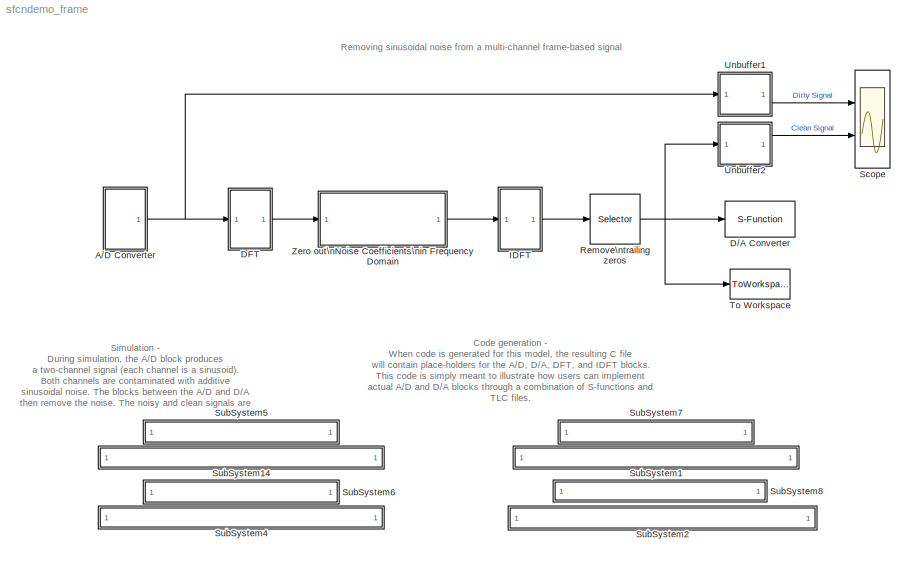
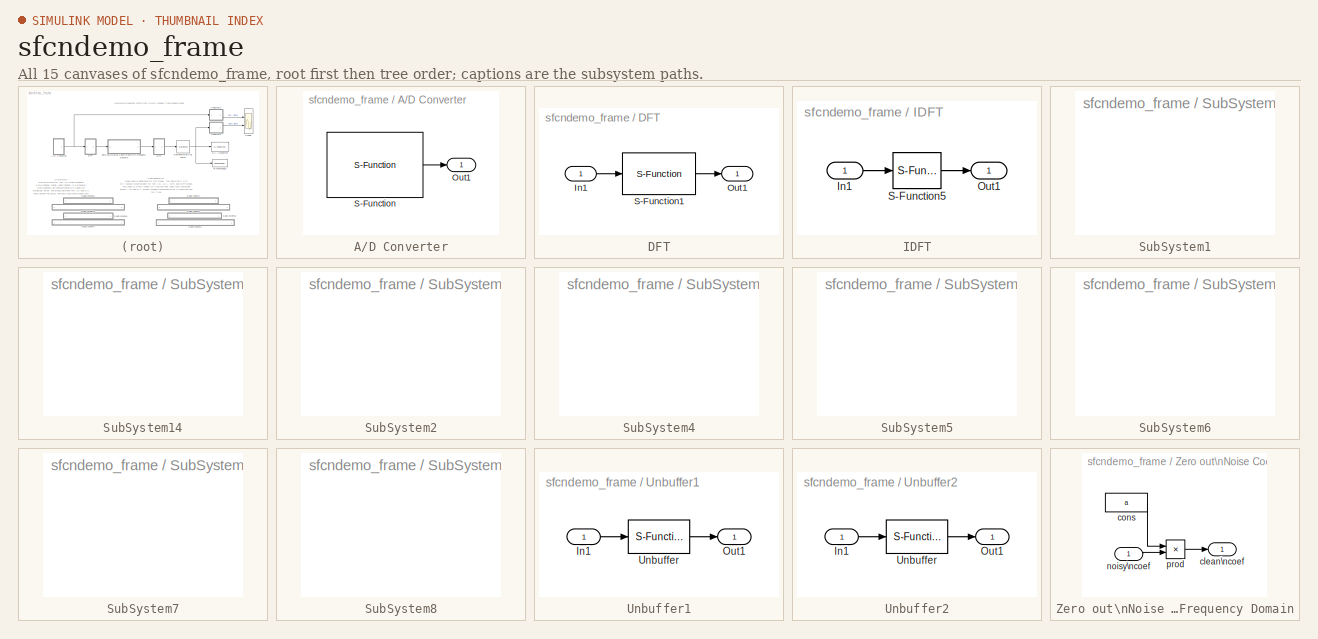
[diagram: thumbnail index - all 15 canvases of the model, root first then tree order]
MODEL sfcndemo_frame
KIND model
CONFIG PreLoadFcn = a=ones(1,256);a(96:110)=zeros(1,15);a(148:162)=zeros(1,15);a=[a', a'];
BLOCK [SubSystem] A//D Converter
  MaskCallbackString = ||||||
  MaskDescription = During simulation, produces a constant or sinusodial frame-based signal with additive sinusoidal noise. Multi-channel sinusoidal signals can be produced by giving a vector of frequncies or amplitudes. The same noise is added to all channels.\n
  MaskDisplay = disp('A/D')\n
  MaskEnableString = on,on,on,on,on,on,on
  MaskIconFrame = on
  MaskIconOpaque = on
  MaskIconRotate = none
  MaskIconUnits = autoscale
  MaskPromptString = Waveform for simulation|Amplitudes|Frequencies|Sample time|Frame size|Noise amplitude for simulation|Noise frequency for simulation
  MaskStyleString = popup(Constant | Sine),edit,edit,edit,edit,edit,edit
  MaskTabNameString = ,,,,,,
  MaskToolTipString = on,on,on,on,on,on,on
  MaskTunableValueString = on,on,on,on,on,on,on
  MaskType = A/D Converter
  MaskValueString = Sine|[10 5]|[5 10]|0.005|64|4|80
  MaskVarAliasString = ,,,,,,
  MaskVariables = wf=@1;amp=@2;freq=@3;Ts=@4;fs=@5;namp=@6;nfreq=@7;
  MaskVisibilityString = on,on,on,on,on,on,on
  MinAlgLoopOccurrences = off
  Ports = [0, 1]
  PropExecContextAcrossSSBoundary = on
  RTWSystemCode = Auto
  TreatAsAtomicUnit = off
BLOCK [Outport] A//D Converter/Out1
  IconDisplay = Port number
BLOCK [S-Function] A//D Converter/S-Function
  FunctionName = sfun_frmad
  Parameters = wf,amp,freq,Ts,fs,namp,nfreq
  Ports = [0, 1]
  SFunctionModules = sfun_frmad_wrapper
BLOCK [S-Function] D//A Converter
  FunctionName = sfun_frmda
  MaskDescription = Frame-based D/A converter. Has no function during simulation.
  MaskDisplay = disp('D/A')
  MaskIconFrame = on
  MaskIconOpaque = on
  MaskIconRotate = none
  MaskIconUnits = autoscale
  MaskType = D/A Converter
  Ports = [1]
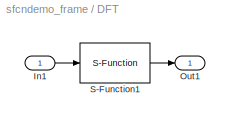
BLOCK [SubSystem] DFT
  MaskDescription = Compue the Discrete Fourer Transform
  MaskDisplay = disp('DFT')
  MaskEnableString = on
  MaskIconFrame = on
  MaskIconOpaque = on
  MaskIconRotate = none
  MaskIconUnits = autoscale
  MaskPromptString = DFT size
  MaskStyleString = edit
  MaskToolTipString = on
  MaskTunableValueString = on
  MaskType = DFT
  MaskValueString = 256
  MaskVariables = ds=@1;
  MaskVisibilityString = on
  MinAlgLoopOccurrences = off
  Ports = [1, 1]
  PropExecContextAcrossSSBoundary = on
  RTWSystemCode = Auto
  TreatAsAtomicUnit = off
BLOCK [Inport] DFT/In1
  IconDisplay = Port number
  LatchInput = off
  Port = 1
BLOCK [Outport] DFT/Out1
  IconDisplay = Port number
BLOCK [S-Function] DFT/S-Function1
  FunctionName = sfun_frmdft
  Parameters = 1,ds
  Ports = [1, 1]
  SFunctionModules = sfun_frmdft_wrapper
BLOCK [SubSystem] IDFT
  MaskDescription = Compute the inverse Discrete Fourier Transform.
  MaskDisplay = disp('IDFT')
  MaskIconFrame = on
  MaskIconOpaque = on
  MaskIconRotate = none
  MaskIconUnits = autoscale
  MaskType = IDFT
  MinAlgLoopOccurrences = off
  Ports = [1, 1]
  PropExecContextAcrossSSBoundary = on
  RTWSystemCode = Auto
  TreatAsAtomicUnit = off
BLOCK [Inport] IDFT/In1
  IconDisplay = Port number
  LatchInput = off
  Port = 1
BLOCK [Outport] IDFT/Out1
  IconDisplay = Port number
BLOCK [S-Function] IDFT/S-Function5
  FunctionName = sfun_frmdft
  MaskIconFrame = on
  MaskIconOpaque = on
  MaskIconRotate = none
  MaskIconUnits = autoscale
  Parameters = 2,256
  Ports = [1, 1]
  SFunctionModules = sfun_frmdft_wrapper
BLOCK [Selector] Remove\ntrailing zeros
  Columns = -1
  InputType = Matrix
  Ports = [1, 1]
  Rows = 1:64
BLOCK [Scope] Scope
  DataFormat = StructureWithTime
  NumInputPorts = 2
  Ports = [2]
  SaveToWorkspace = on
  TimeRange = 1
  YMax = 12~12
  YMin = -12~-12
BLOCK [SubSystem] SubSystem1
  AttributesFormatString = <path>
  MaskDisplay = disp(x)
  MaskEnableString = on
  MaskIconFrame = on
  MaskIconOpaque = on
  MaskIconRotate = none
  MaskIconUnits = autoscale
  MaskInitialization = x=sfundemo_maskdisp;
  MaskPromptString = file name
  MaskStyleString = edit
  MaskToolTipString = on
  MaskTunableValueString = off
  MaskValueString = sfun_frmdft.tlc
  MaskVariables = filename=&1;
  MaskVisibilityString = on
  MinAlgLoopOccurrences = off
  OpenFcn = sfundemo_openfcn
  Ports = []
  PropExecContextAcrossSSBoundary = on
  RTWSystemCode = Auto
  TreatAsAtomicUnit = off
BLOCK [SubSystem] SubSystem14
  AttributesFormatString = <path>
  MaskDisplay = disp(x)
  MaskEnableString = on
  MaskIconFrame = on
  MaskIconOpaque = on
  MaskIconRotate = none
  MaskIconUnits = autoscale
  MaskInitialization = x=sfundemo_maskdisp;
  MaskPromptString = file name
  MaskStyleString = edit
  MaskToolTipString = on
  MaskTunableValueString = off
  MaskValueString = sfun_frmad.tlc
  MaskVariables = filename=&1;
  MaskVisibilityString = on
  MinAlgLoopOccurrences = off
  OpenFcn = sfundemo_openfcn
  Ports = []
  PropExecContextAcrossSSBoundary = on
  RTWSystemCode = Auto
  TreatAsAtomicUnit = off
BLOCK [SubSystem] SubSystem2
  AttributesFormatString = <path>
  MaskDisplay = disp(x)
  MaskEnableString = on
  MaskIconFrame = on
  MaskIconOpaque = on
  MaskIconRotate = none
  MaskIconUnits = autoscale
  MaskInitialization = x=sfundemo_maskdisp;
  MaskPromptString = file name
  MaskStyleString = edit
  MaskToolTipString = on
  MaskTunableValueString = off
  MaskValueString = sfun_frmunbuff.tlc
  MaskVariables = filename=&1;
  MaskVisibilityString = on
  MinAlgLoopOccurrences = off
  OpenFcn = sfundemo_openfcn
  Ports = []
  PropExecContextAcrossSSBoundary = on
  RTWSystemCode = Auto
  TreatAsAtomicUnit = off
BLOCK [SubSystem] SubSystem4
  AttributesFormatString = <path>
  MaskDisplay = disp(x)
  MaskEnableString = on
  MaskIconFrame = on
  MaskIconOpaque = on
  MaskIconRotate = none
  MaskIconUnits = autoscale
  MaskInitialization = x=sfundemo_maskdisp;
  MaskPromptString = file name
  MaskStyleString = edit
  MaskToolTipString = on
  MaskTunableValueString = off
  MaskValueString = sfun_frmda.tlc
  MaskVariables = filename=&1;
  MaskVisibilityString = on
  MinAlgLoopOccurrences = off
  OpenFcn = sfundemo_openfcn
  Ports = []
  PropExecContextAcrossSSBoundary = on
  RTWSystemCode = Auto
  TreatAsAtomicUnit = off
BLOCK [SubSystem] SubSystem5
  AttributesFormatString = <path>
  MaskDisplay = disp(x)
  MaskEnableString = on
  MaskIconFrame = on
  MaskIconOpaque = on
  MaskIconRotate = none
  MaskIconUnits = autoscale
  MaskInitialization = x=sfundemo_maskdisp;
  MaskPromptString = file name
  MaskStyleString = edit
  MaskToolTipString = on
  MaskTunableValueString = off
  MaskValueString = sfun_frmad.c
  MaskVariables = filename=&1;
  MaskVisibilityString = on
  MinAlgLoopOccurrences = off
  OpenFcn = sfundemo_openfcn
  Ports = []
  PropExecContextAcrossSSBoundary = on
  RTWSystemCode = Auto
  TreatAsAtomicUnit = off
BLOCK [SubSystem] SubSystem6
  AttributesFormatString = <path>
  MaskDisplay = disp(x)
  MaskEnableString = on
  MaskIconFrame = on
  MaskIconOpaque = on
  MaskIconRotate = none
  MaskIconUnits = autoscale
  MaskInitialization = x=sfundemo_maskdisp;
  MaskPromptString = file name
  MaskStyleString = edit
  MaskToolTipString = on
  MaskTunableValueString = off
  MaskValueString = sfun_frmda.c
  MaskVariables = filename=&1;
  MaskVisibilityString = on
  MinAlgLoopOccurrences = off
  OpenFcn = sfundemo_openfcn
  Ports = []
  PropExecContextAcrossSSBoundary = on
  RTWSystemCode = Auto
  TreatAsAtomicUnit = off
BLOCK [SubSystem] SubSystem7
  AttributesFormatString = <path>
  MaskDisplay = disp(x)
  MaskEnableString = on
  MaskIconFrame = on
  MaskIconOpaque = on
  MaskIconRotate = none
  MaskIconUnits = autoscale
  MaskInitialization = x=sfundemo_maskdisp;
  MaskPromptString = file name
  MaskStyleString = edit
  MaskToolTipString = on
  MaskTunableValueString = off
  MaskValueString = sfun_frmdft.c
  MaskVariables = filename=&1;
  MaskVisibilityString = on
  MinAlgLoopOccurrences = off
  OpenFcn = sfundemo_openfcn
  Ports = []
  PropExecContextAcrossSSBoundary = on
  RTWSystemCode = Auto
  TreatAsAtomicUnit = off
BLOCK [SubSystem] SubSystem8
  AttributesFormatString = <path>
  MaskDisplay = disp(x)
  MaskEnableString = on
  MaskIconFrame = on
  MaskIconOpaque = on
  MaskIconRotate = none
  MaskIconUnits = autoscale
  MaskInitialization = x=sfundemo_maskdisp;
  MaskPromptString = file name
  MaskStyleString = edit
  MaskToolTipString = on
  MaskTunableValueString = off
  MaskValueString = sfun_frmunbuff.c
  MaskVariables = filename=&1;
  MaskVisibilityString = on
  MinAlgLoopOccurrences = off
  OpenFcn = sfundemo_openfcn
  Ports = []
  PropExecContextAcrossSSBoundary = on
  RTWSystemCode = Auto
  TreatAsAtomicUnit = off
BLOCK [ToWorkspace] To Workspace
  MaxDataPoints = inf
  SampleTime = -1
  SaveFormat = Array
  VariableName = simout
BLOCK [SubSystem] Unbuffer1
  MaskDescription = Unbuffer a frame-based signal
  MaskDisplay = disp('Unbuffer')
  MaskIconFrame = on
  MaskIconOpaque = on
  MaskIconRotate = none
  MaskIconUnits = autoscale
  MaskType = Frame Unbuffer
  MinAlgLoopOccurrences = off
  Ports = [1, 1]
  PropExecContextAcrossSSBoundary = on
  RTWSystemCode = Auto
  TreatAsAtomicUnit = off
BLOCK [Inport] Unbuffer1/In1
  IconDisplay = Port number
  LatchInput = off
  Port = 1
BLOCK [Outport] Unbuffer1/Out1
  IconDisplay = Port number
BLOCK [S-Function] Unbuffer1/Unbuffer
  FunctionName = sfun_frmunbuff
  MaskIconFrame = on
  MaskIconOpaque = on
  MaskIconRotate = none
  MaskIconUnits = autoscale
  Ports = [1, 1]
  SFunctionModules = sfun_frmunbuff_wrapper
BLOCK [SubSystem] Unbuffer2
  MaskDescription = Unbuffer a frame-based signal
  MaskDisplay = disp('Unbuffer')
  MaskIconFrame = on
  MaskIconOpaque = on
  MaskIconRotate = none
  MaskIconUnits = autoscale
  MaskType = Frame Unbuffer
  MinAlgLoopOccurrences = off
  Ports = [1, 1]
  PropExecContextAcrossSSBoundary = on
  RTWSystemCode = Auto
  TreatAsAtomicUnit = off
BLOCK [Inport] Unbuffer2/In1
  IconDisplay = Port number
  LatchInput = off
  Port = 1
BLOCK [Outport] Unbuffer2/Out1
  IconDisplay = Port number
BLOCK [S-Function] Unbuffer2/Unbuffer
  FunctionName = sfun_frmunbuff
  MaskIconFrame = on
  MaskIconOpaque = on
  MaskIconRotate = none
  MaskIconUnits = autoscale
  Ports = [1, 1]
  SFunctionModules = sfun_frmunbuff_wrapper
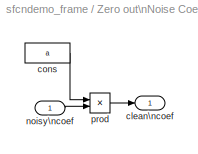
BLOCK [SubSystem] Zero out\nNoise Coefficients\nin Frequency Domain
  MinAlgLoopOccurrences = off
  Ports = [1, 1]
  PropExecContextAcrossSSBoundary = on
  RTWSystemCode = Auto
  TreatAsAtomicUnit = off
BLOCK [Outport] Zero out\nNoise Coefficients\nin Frequency Domain/clean\ncoef
  IconDisplay = Port number
BLOCK [Constant] Zero out\nNoise Coefficients\nin Frequency Domain/cons
  Value = a
BLOCK [Inport] Zero out\nNoise Coefficients\nin Frequency Domain/noisy\ncoef
  IconDisplay = Port number
  LatchInput = off
  Port = 1
BLOCK [Product] Zero out\nNoise Coefficients\nin Frequency Domain/prod
  Ports = [2, 1]
  RndMeth = Floor
ANNOTATION (root): Code generation - \nWhen code is generated for this model, the resulting C file\nwill contain place-holders for the A/D, D/A, DFT, and IDFT blocks.\nThis code is simply meant to illustrate how users can implement \nactual A/D and D/A blocks through a combination of S-functions and\nTLC files.
ANNOTATION (root): Removing sinusoidal noise from a multi-channel frame-based signal
ANNOTATION (root): Simulation - \nDuring simulation, the A/D block produces \na two-channel signal (each channel is a sinusoid).\nBoth channels are contaminated with additive\nsinusoidal noise. The blocks between the A/D and D/A \nthen remove the noise. The noisy and clean signals are\ndisplayed on the scope.
LINE A//D Converter/S-Function:1 -> A//D Converter/Out1:1
NET A//D Converter:1 -> DFT:1, Unbuffer1:1
LINE DFT/In1:1 -> DFT/S-Function1:1
LINE DFT/S-Function1:1 -> DFT/Out1:1
LINE DFT:1 -> Zero out\nNoise Coefficients\nin Frequency Domain:1
LINE IDFT/In1:1 -> IDFT/S-Function5:1
LINE IDFT/S-Function5:1 -> IDFT/Out1:1
LINE IDFT:1 -> Remove\ntrailing zeros:1
NET Remove\ntrailing zeros:1 -> D//A Converter:1, To Workspace:1, Unbuffer2:1
LINE Unbuffer1/In1:1 -> Unbuffer1/Unbuffer:1
LINE Unbuffer1/Unbuffer:1 -> Unbuffer1/Out1:1
LINE Unbuffer1:1 -> Scope:1
LINE Unbuffer2/In1:1 -> Unbuffer2/Unbuffer:1
LINE Unbuffer2/Unbuffer:1 -> Unbuffer2/Out1:1
LINE Unbuffer2:1 -> Scope:2
LINE Zero out\nNoise Coefficients\nin Frequency Domain/cons:1 -> Zero out\nNoise Coefficients\nin Frequency Domain/prod:1
LINE Zero out\nNoise Coefficients\nin Frequency Domain/noisy\ncoef:1 -> Zero out\nNoise Coefficients\nin Frequency Domain/prod:2
LINE Zero out\nNoise Coefficients\nin Frequency Domain/prod:1 -> Zero out\nNoise Coefficients\nin Frequency Domain/clean\ncoef:1
LINE Zero out\nNoise Coefficients\nin Frequency Domain:1 -> IDFT:1
note: NET lines group one-source signal fan-out (src -> all destinations, sorted); 1:1 wires keep LINE
note: 8 file-system paths scrubbed to <path> (not preserved elsewhere — flat text is the only slx artifact)
